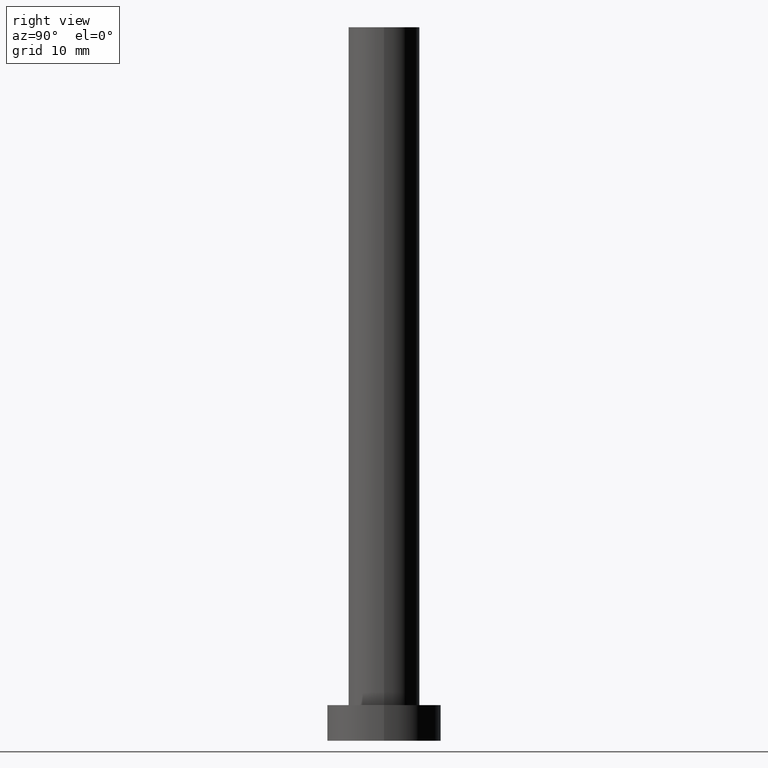
[diagram: clean part render]
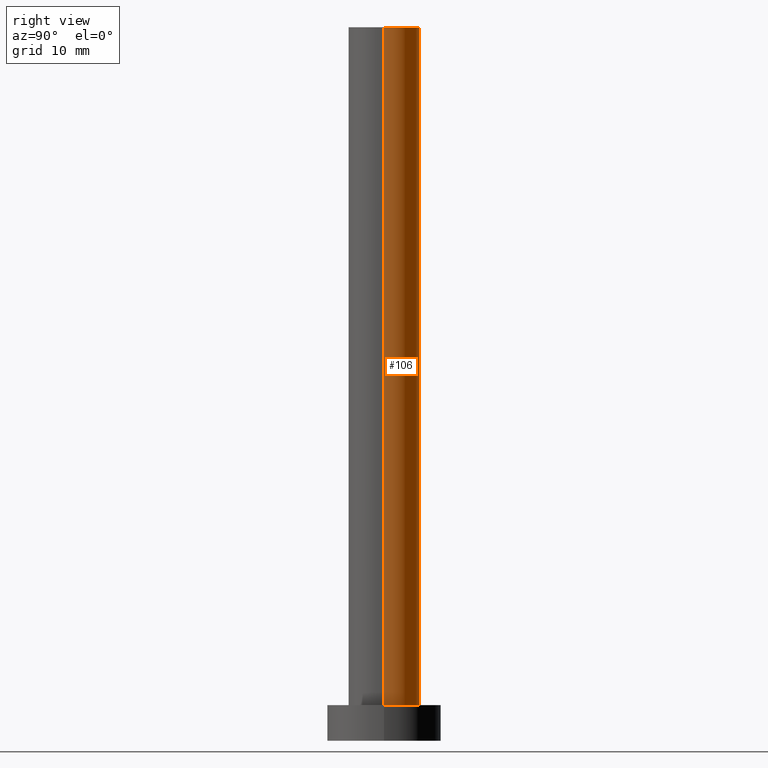
[diagram: same view with one face highlighted and labeled with its STEP entity id]
A machine part, right view. The second image highlights one B-rep face of the part: STEP entity #106.
In plain terms, the highlighted cylindrical surface (edge-blend (fillet) strip) has radius 5 mm, axis along (-0, -0, -1).
Its self-contained STEP definition (entity closure, byte-faithful):
#2 = LINE ( 'NONE', #89, #175 ) ;
#25 = CARTESIAN_POINT ( 'NONE',  ( 0.000000000000000000, 0.000000000000000000, 100.0000000000000000 ) ) ;
#39 = ORIENTED_EDGE ( 'NONE', *, *, #216, .T. ) ;
#42 = VERTEX_POINT ( 'NONE', #137 ) ;
#44 = VECTOR ( 'NONE', #75, 1000.000000000000000 ) ;
#45 = DIRECTION ( 'NONE',  ( 1.000000000000000000, 0.000000000000000000, 0.000000000000000000 ) ) ;
#50 = CARTESIAN_POINT ( 'NONE',  ( 0.000000000000000000, 0.000000000000000000, 100.0000000000000000 ) ) ;
#66 = CARTESIAN_POINT ( 'NONE',  ( 0.000000000000000000, 0.000000000000000000, 5.000000000000000000 ) ) ;
#68 = DIRECTION ( 'NONE',  ( 1.000000000000000000, 0.000000000000000000, 0.000000000000000000 ) ) ;
#75 = DIRECTION ( 'NONE',  ( -0.000000000000000000, -0.000000000000000000, -1.000000000000000000 ) ) ;
#84 = FACE_OUTER_BOUND ( 'NONE', #153, .T. ) ;
#88 = CARTESIAN_POINT ( 'NONE',  ( 5.000000000000000000, 6.123233995736766282E-16, 100.0000000000000000 ) ) ;
#89 = CARTESIAN_POINT ( 'NONE',  ( -5.000000000000000000, 0.000000000000000000, 100.0000000000000000 ) ) ;
#92 = CARTESIAN_POINT ( 'NONE',  ( 5.000000000000000000, 6.123233995736766282E-16, 5.000000000000000000 ) ) ;
#94 = LINE ( 'NONE', #170, #44 ) ;
#103 = EDGE_CURVE ( 'NONE', #253, #42, #2, .T. ) ;
#106 = ADVANCED_FACE ( 'NONE', ( #84 ), #208, .T. ) ;
#134 = EDGE_CURVE ( 'NONE', #158, #253, #183, .T. ) ;
#135 = CIRCLE ( 'NONE', #139, 5.000000000000000000 ) ;
#137 = CARTESIAN_POINT ( 'NONE',  ( -5.000000000000000000, 0.000000000000000000, 5.000000000000000000 ) ) ;
#138 = AXIS2_PLACEMENT_3D ( 'NONE', #25, #187, #68 ) ;
#139 = AXIS2_PLACEMENT_3D ( 'NONE', #66, #144, #45 ) ;
#144 = DIRECTION ( 'NONE',  ( 0.000000000000000000, 0.000000000000000000, 1.000000000000000000 ) ) ;
#153 = EDGE_LOOP ( 'NONE', ( #250, #39, #231, #173 ) ) ;
#158 = VERTEX_POINT ( 'NONE', #88 ) ;
#165 = CARTESIAN_POINT ( 'NONE',  ( -5.000000000000000000, 0.000000000000000000, 100.0000000000000000 ) ) ;
#170 = CARTESIAN_POINT ( 'NONE',  ( 5.000000000000000000, 6.123233995736766282E-16, 100.0000000000000000 ) ) ;
#173 = ORIENTED_EDGE ( 'NONE', *, *, #103, .F. ) ;
#175 = VECTOR ( 'NONE', #184, 1000.000000000000000 ) ;
#183 = CIRCLE ( 'NONE', #138, 5.000000000000000000 ) ;
#184 = DIRECTION ( 'NONE',  ( -0.000000000000000000, -0.000000000000000000, -1.000000000000000000 ) ) ;
#187 = DIRECTION ( 'NONE',  ( 0.000000000000000000, 0.000000000000000000, 1.000000000000000000 ) ) ;
#194 = EDGE_CURVE ( 'NONE', #196, #42, #135, .T. ) ;
#196 = VERTEX_POINT ( 'NONE', #92 ) ;
#204 = DIRECTION ( 'NONE',  ( -0.000000000000000000, -0.000000000000000000, -1.000000000000000000 ) ) ;
#206 = DIRECTION ( 'NONE',  ( -1.000000000000000000, 0.000000000000000000, 0.000000000000000000 ) ) ;
#208 = CYLINDRICAL_SURFACE ( 'NONE', #223, 5.000000000000000000 ) ;
#216 = EDGE_CURVE ( 'NONE', #158, #196, #94, .T. ) ;
#223 = AXIS2_PLACEMENT_3D ( 'NONE', #50, #204, #206 ) ;
#231 = ORIENTED_EDGE ( 'NONE', *, *, #194, .T. ) ;
#250 = ORIENTED_EDGE ( 'NONE', *, *, #134, .F. ) ;
#253 = VERTEX_POINT ( 'NONE', #165 ) ;